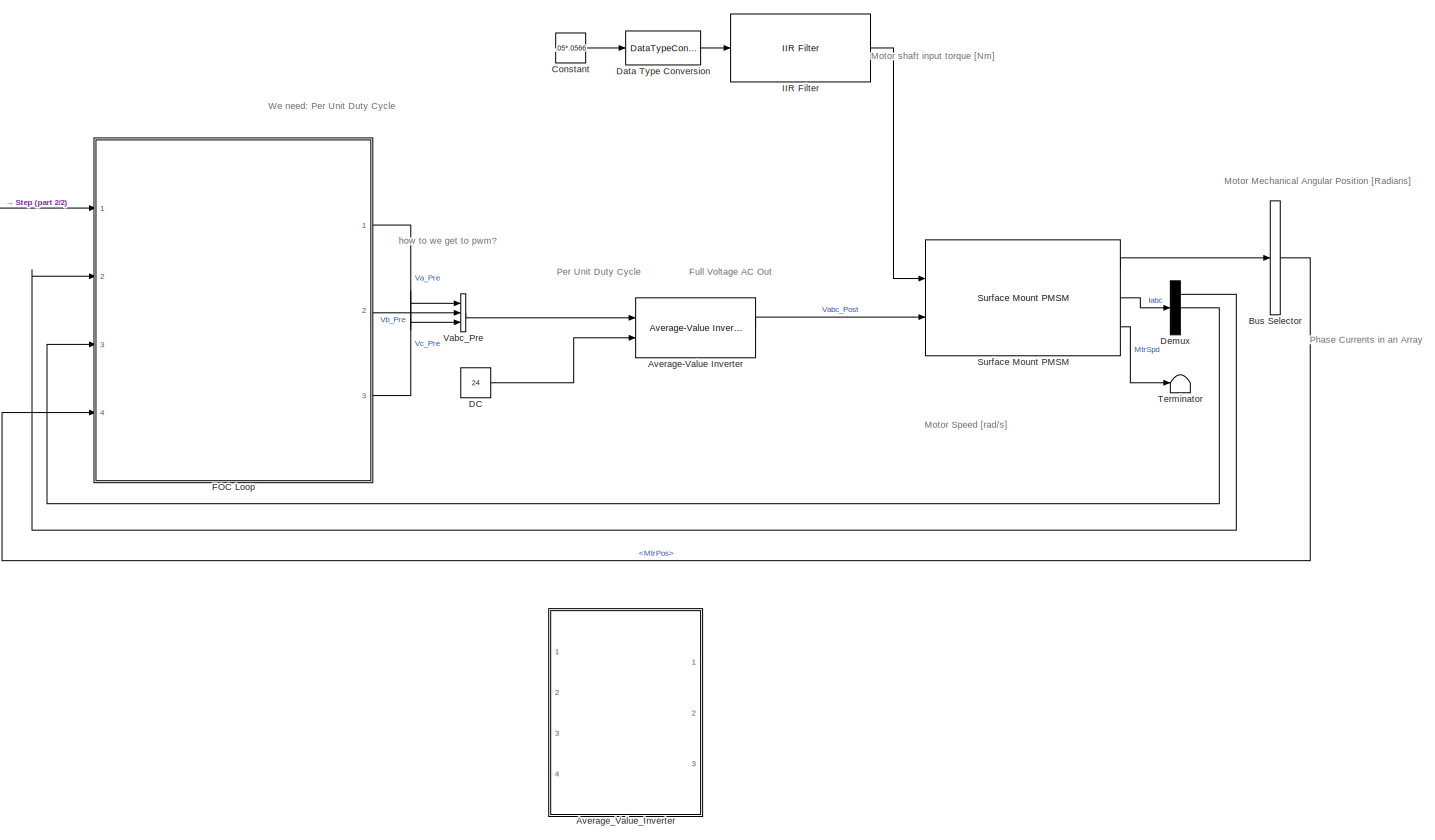
[diagram: root canvas - part 1/2, most of the canvas]
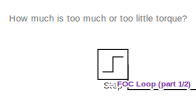
[diagram: root canvas - part 2/2, top left region]
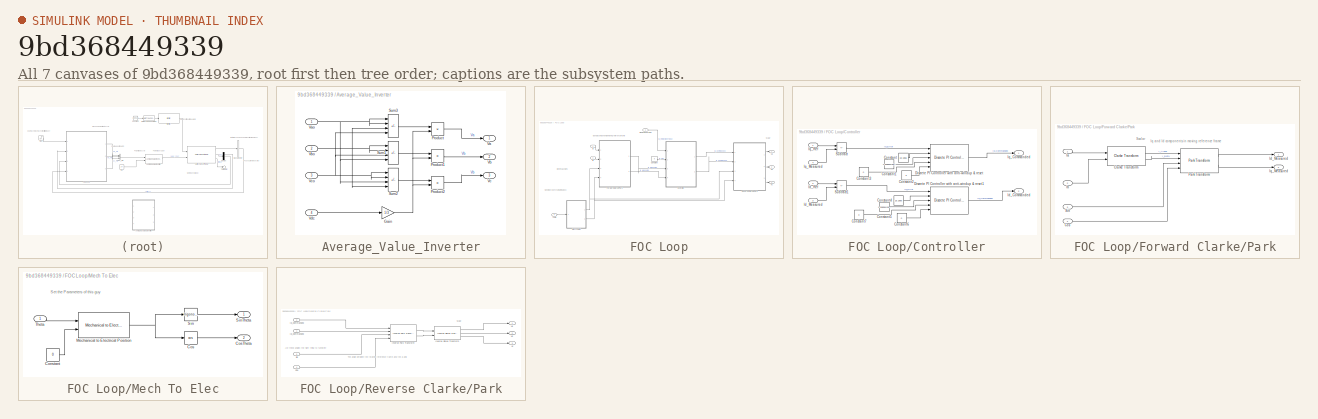
[diagram: thumbnail index - all 7 canvases of the model, root first then tree order]
MODEL slx_9bd368449339
KIND model
CONFIG AbsTol = auto
CONFIG EnableMultiTasking = off
CONFIG FixedStep = auto
CONFIG MaxStep = auto
CONFIG MinStep = auto
CONFIG RelTol = 1e-3
CONFIG SampleTimeConstraint = Unconstrained
CONFIG SolverName = VariableStepAuto
CONFIG StartTime = 0.0
CONFIG StopTime = 4
BLOCK [Reference] Average-Value Inverter  REF=mcbplantlib/Average-Value Inverter
  Ports = [2, 1]
  SourceBlock = mcbplantlib/Average-Value Inverter
  SourceProductBaseCode = MT
  SourceType = Average-Value Inverter
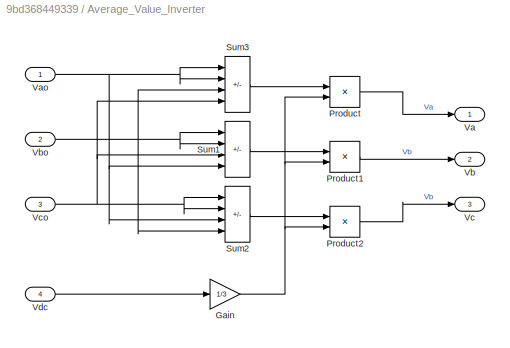
BLOCK [SubSystem] Average_Value_Inverter
  Ports = [4, 3]
  RequestExecContextInheritance = off
BLOCK [Gain] Average_Value_Inverter/Gain
  Gain = 1/3
  OutDataTypeStr = Inherit: Same as input
  RndMeth = Simplest
BLOCK [Product] Average_Value_Inverter/Product
  OutDataTypeStr = Inherit: Same as first input
  Ports = [2, 1]
  RndMeth = Simplest
BLOCK [Product] Average_Value_Inverter/Product1
  OutDataTypeStr = Inherit: Same as first input
  Ports = [2, 1]
  RndMeth = Simplest
BLOCK [Product] Average_Value_Inverter/Product2
  OutDataTypeStr = Inherit: Same as first input
  Ports = [2, 1]
  RndMeth = Simplest
BLOCK [Sum] Average_Value_Inverter/Sum1
  AccumDataTypeStr = Inherit: Same as first input
  IconShape = rectangular
  Inputs = |++--
  OutDataTypeStr = Inherit: Same as first input
  Ports = [4, 1]
  RndMeth = Simplest
BLOCK [Sum] Average_Value_Inverter/Sum2
  AccumDataTypeStr = Inherit: Same as first input
  IconShape = rectangular
  Inputs = |++--
  OutDataTypeStr = Inherit: Same as first input
  Ports = [4, 1]
  RndMeth = Simplest
BLOCK [Sum] Average_Value_Inverter/Sum3
  AccumDataTypeStr = Inherit: Same as first input
  IconShape = rectangular
  Inputs = |++--
  OutDataTypeStr = Inherit: Same as first input
  Ports = [4, 1]
  RndMeth = Simplest
BLOCK [Outport] Average_Value_Inverter/Va
  VectorParamsAs1DForOutWhenUnconnected = off
BLOCK [Inport] Average_Value_Inverter/Vao
BLOCK [Outport] Average_Value_Inverter/Vb
  Port = 2
  VectorParamsAs1DForOutWhenUnconnected = off
BLOCK [Inport] Average_Value_Inverter/Vbo
  Port = 2
BLOCK [Outport] Average_Value_Inverter/Vc
  Port = 3
  VectorParamsAs1DForOutWhenUnconnected = off
BLOCK [Inport] Average_Value_Inverter/Vco
  Port = 3
BLOCK [Inport] Average_Value_Inverter/Vdc
  Port = 4
BLOCK [BusSelector] Bus Selector
  OutputSignals = MtrPos
  Ports = [1, 1]
BLOCK [Constant] Constant
  Value = .05*.0566
BLOCK [Constant] DC 
  Value = 24
BLOCK [DataTypeConversion] Data Type Conversion
  OutDataTypeStr = single
  RndMeth = Floor
  SaturateOnIntegerOverflow = off
BLOCK [Demux] Demux
  Outputs = 3
  Ports = [1, 3]
BLOCK [SubSystem] FOC Loop
  Ports = [4, 3]
  RequestExecContextInheritance = off
BLOCK [Constant] FOC Loop/Constant
  Value = 0
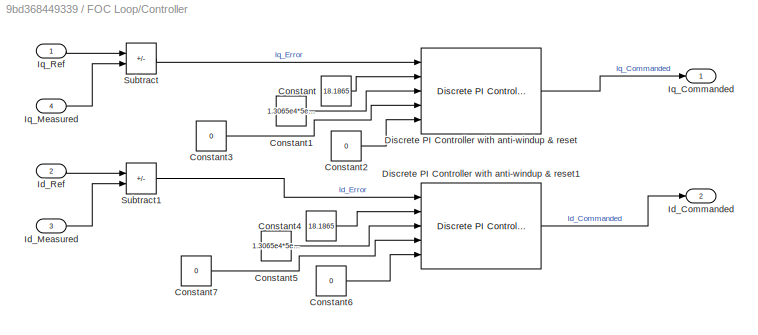
BLOCK [SubSystem] FOC Loop/Controller
  Ports = [4, 2]
  RequestExecContextInheritance = off
BLOCK [Constant] FOC Loop/Controller/Constant
  Value = 18.1865
BLOCK [Constant] FOC Loop/Controller/Constant1
  Value = 1.3065e4*5e-5
BLOCK [Constant] FOC Loop/Controller/Constant2
  Value = 0
BLOCK [Constant] FOC Loop/Controller/Constant3
  Value = 0
BLOCK [Constant] FOC Loop/Controller/Constant4
  Value = 18.1865
BLOCK [Constant] FOC Loop/Controller/Constant5
  Value = 1.3065e4*5e-5
BLOCK [Constant] FOC Loop/Controller/Constant6
  Value = 0
BLOCK [Constant] FOC Loop/Controller/Constant7
  Value = 0
BLOCK [Reference] FOC Loop/Controller/Discrete PI Controller with anti-windup & reset  REF=mcbcontrolslib/Discrete PI Controller 
with anti-windup & reset
  Ports = [5, 1]
  SourceBlock = mcbcontrolslib/Discrete PI Controller \nwith anti-windup & reset
  SourceProductBaseCode = MT
  SourceType = Discrete PI Controller with anti-windup and reset
BLOCK [Reference] FOC Loop/Controller/Discrete PI Controller with anti-windup & reset1  REF=mcbcontrolslib/Discrete PI Controller 
with anti-windup & reset
  Ports = [5, 1]
  SourceBlock = mcbcontrolslib/Discrete PI Controller \nwith anti-windup & reset
  SourceProductBaseCode = MT
  SourceType = Discrete PI Controller with anti-windup and reset
BLOCK [Outport] FOC Loop/Controller/Id_Commanded
  Port = 2
BLOCK [Inport] FOC Loop/Controller/Id_Measured
  Port = 3
BLOCK [Inport] FOC Loop/Controller/Id_Ref
  Port = 2
BLOCK [Outport] FOC Loop/Controller/Iq_Commanded
BLOCK [Inport] FOC Loop/Controller/Iq_Measured
  Port = 4
BLOCK [Inport] FOC Loop/Controller/Iq_Ref
BLOCK [Sum] FOC Loop/Controller/Subtract
  IconShape = rectangular
  Inputs = +-
  Ports = [2, 1]
BLOCK [Sum] FOC Loop/Controller/Subtract1
  IconShape = rectangular
  Inputs = +-
  Ports = [2, 1]
BLOCK [Inport] FOC Loop/Desired Torque
BLOCK [SubSystem] FOC Loop/Forward Clarke//Park
  Ports = [4, 2]
  RequestExecContextInheritance = off
BLOCK [Reference] FOC Loop/Forward Clarke//Park/Clarke Transform  REF=mcbcontrolslib/Clarke Transform
  Ports = [2, 2]
  SourceBlock = mcbcontrolslib/Clarke Transform
  SourceProductBaseCode = MT
  SourceType = Clarke Transform
BLOCK [Inport] FOC Loop/Forward Clarke//Park/Cos
  Port = 4
BLOCK [Inport] FOC Loop/Forward Clarke//Park/Ia
BLOCK [Inport] FOC Loop/Forward Clarke//Park/Ib
  Port = 2
BLOCK [Outport] FOC Loop/Forward Clarke//Park/Id_Measured
BLOCK [Outport] FOC Loop/Forward Clarke//Park/Iq_Measured
  Port = 2
BLOCK [Reference] FOC Loop/Forward Clarke//Park/Park Transform  REF=mcbcontrolslib/Park Transform
  Ports = [4, 2]
  SourceBlock = mcbcontrolslib/Park Transform
  SourceProductBaseCode = MT
  SourceType = Park Transform
BLOCK [Inport] FOC Loop/Forward Clarke//Park/Sin
  Port = 3
BLOCK [Inport] FOC Loop/Ia
  Port = 2
BLOCK [Inport] FOC Loop/Ib
  Port = 3
BLOCK [SubSystem] FOC Loop/Mech To Elec
  Ports = [1, 2]
  RequestExecContextInheritance = off
BLOCK [Constant] FOC Loop/Mech To Elec/Constant
  Value = 0
BLOCK [Trigonometry] FOC Loop/Mech To Elec/Cos
  Operator = cos
  Ports = [1, 1]
BLOCK [Outport] FOC Loop/Mech To Elec/CosTheta
  Port = 2
BLOCK [Reference] FOC Loop/Mech To Elec/Mechanical to Electrical Position  REF=mcbpositiondecoderlib/Mechanical to Electrical Position
  Ports = [2, 1]
  SourceBlock = mcbpositiondecoderlib/Mechanical to Electrical Position
  SourceProductBaseCode = MT
  SourceType = Mechanical to Electrical Position
BLOCK [Trigonometry] FOC Loop/Mech To Elec/Sin
  Ports = [1, 1]
BLOCK [Outport] FOC Loop/Mech To Elec/SinTheta
BLOCK [Inport] FOC Loop/Mech To Elec/Theta
BLOCK [SubSystem] FOC Loop/Reverse Clarke//Park
  Ports = [4, 3]
  RequestExecContextInheritance = off
BLOCK [Inport] FOC Loop/Reverse Clarke//Park/Cos
  Port = 4
BLOCK [Inport] FOC Loop/Reverse Clarke//Park/Id_Commanded
  Port = 2
BLOCK [Reference] FOC Loop/Reverse Clarke//Park/Inverse Clarke Transform  REF=mcbcontrolslib/Inverse Clarke Transform
  Ports = [2, 3]
  SourceBlock = mcbcontrolslib/Inverse Clarke Transform
  SourceProductBaseCode = MT
  SourceType = Inverse Clarke Transform
BLOCK [Reference] FOC Loop/Reverse Clarke//Park/Inverse Park Transform  REF=mcbcontrolslib/Inverse Park Transform
  Ports = [4, 2]
  SourceBlock = mcbcontrolslib/Inverse Park Transform
  SourceProductBaseCode = MT
  SourceType = Inverse Park Transform
BLOCK [Inport] FOC Loop/Reverse Clarke//Park/Iq_Commanded
BLOCK [Inport] FOC Loop/Reverse Clarke//Park/Sin
  Port = 3
BLOCK [Outport] FOC Loop/Reverse Clarke//Park/Va
BLOCK [Outport] FOC Loop/Reverse Clarke//Park/Vb
  Port = 2
BLOCK [Outport] FOC Loop/Reverse Clarke//Park/Vc
  Port = 3
BLOCK [Inport] FOC Loop/Theta
  Port = 4
BLOCK [Outport] FOC Loop/Va
BLOCK [Outport] FOC Loop/Vb
  Port = 2
BLOCK [Outport] FOC Loop/Vc
  Port = 3
BLOCK [Reference] IIR Filter  REF=mcbcontrolslib/IIR Filter
  Ports = [1, 1]
  SourceBlock = mcbcontrolslib/IIR Filter
  SourceProductBaseCode = MT
  SourceType = IIR Filter
BLOCK [Step] Step
  SampleTime = 0
  Time = 2
BLOCK [Reference] Surface Mount PMSM  REF=autolibpmsmexterior/Surface Mount PMSM
  Ports = [2, 3]
  SourceBlock = autolibpmsmexterior/Surface Mount PMSM
  SourceProductBaseCode = PW,MT,UV,VE,VP
  SourceType = Surface Mount PMSM
BLOCK [Terminator] Terminator
BLOCK [BusCreator] Vabc_Pre
  DisplayOption = bar
  InheritFromInputs = on
  Inputs = 3
  Ports = [3, 1]
ANNOTATION (root): How much is too much or too little torque?
ANNOTATION (root): how to we get to pwm?
ANNOTATION (root): Motor Speed [rad/s]
ANNOTATION (root): Motor shaft input torque [Nm]
ANNOTATION (root): Phase Currents in an Array
ANNOTATION (root): We need: Per Unit Duty Cycle
ANNOTATION (root): Full Voltage AC Out
ANNOTATION (root): Motor Mechanical Angular Position [Radians]
ANNOTATION (root): Per Unit Duty Cycle
ANNOTATION FOC Loop: Electrical Angles
ANNOTATION FOC Loop: Scalar
ANNOTATION FOC Loop: Need to properly set up this block
ANNOTATION FOC Loop: Iq and Id components in moving reference frame
ANNOTATION FOC Loop/Forward Clarke//Park: Scalar
ANNOTATION FOC Loop/Forward Clarke//Park: Iq and Id components in moving reference frame
ANNOTATION FOC Loop/Mech To Elec: Set the Parameters of this guy
ANNOTATION FOC Loop/Reverse Clarke//Park: Are these angles the right thing to funnel in?
ANNOTATION FOC Loop/Reverse Clarke//Park: Scalar
ANNOTATION FOC Loop/Reverse Clarke//Park: The angle between the rotating reference frame and the a-axis
LINE Average-Value Inverter:1 -> Surface Mount PMSM:2
NET Average_Value_Inverter/Gain:1 -> Average_Value_Inverter/Product1:2, Average_Value_Inverter/Product2:2, Average_Value_Inverter/Product:2
LINE Average_Value_Inverter/Product1:1 -> Average_Value_Inverter/Vb:1
LINE Average_Value_Inverter/Product2:1 -> Average_Value_Inverter/Vc:1
LINE Average_Value_Inverter/Product:1 -> Average_Value_Inverter/Va:1
LINE Average_Value_Inverter/Sum1:1 -> Average_Value_Inverter/Product1:1
LINE Average_Value_Inverter/Sum2:1 -> Average_Value_Inverter/Product2:1
LINE Average_Value_Inverter/Sum3:1 -> Average_Value_Inverter/Product:1
NET Average_Value_Inverter/Vao:1 -> Average_Value_Inverter/Sum1:4, Average_Value_Inverter/Sum2:3, Average_Value_Inverter/Sum3:1, Average_Value_Inverter/Sum3:2
NET Average_Value_Inverter/Vbo:1 -> Average_Value_Inverter/Sum1:1, Average_Value_Inverter/Sum1:2, Average_Value_Inverter/Sum2:4, Average_Value_Inverter/Sum3:3
NET Average_Value_Inverter/Vco:1 -> Average_Value_Inverter/Sum1:3, Average_Value_Inverter/Sum2:1, Average_Value_Inverter/Sum2:2, Average_Value_Inverter/Sum3:4
LINE Average_Value_Inverter/Vdc:1 -> Average_Value_Inverter/Gain:1
LINE Bus Selector:1 -> FOC Loop:4
LINE Constant:1 -> Data Type Conversion:1
LINE DC :1 -> Average-Value Inverter:2
LINE Data Type Conversion:1 -> IIR Filter:1
LINE Demux:1 -> FOC Loop:2
LINE Demux:2 -> FOC Loop:3
LINE FOC Loop/Constant:1 -> FOC Loop/Controller:2
LINE FOC Loop/Controller/Constant1:1 -> FOC Loop/Controller/Discrete PI Controller with anti-windup & reset:3
LINE FOC Loop/Controller/Constant2:1 -> FOC Loop/Controller/Discrete PI Controller with anti-windup & reset:5
LINE FOC Loop/Controller/Constant3:1 -> FOC Loop/Controller/Discrete PI Controller with anti-windup & reset:4
LINE FOC Loop/Controller/Constant4:1 -> FOC Loop/Controller/Discrete PI Controller with anti-windup & reset1:2
LINE FOC Loop/Controller/Constant5:1 -> FOC Loop/Controller/Discrete PI Controller with anti-windup & reset1:3
LINE FOC Loop/Controller/Constant6:1 -> FOC Loop/Controller/Discrete PI Controller with anti-windup & reset1:5
LINE FOC Loop/Controller/Constant7:1 -> FOC Loop/Controller/Discrete PI Controller with anti-windup & reset1:4
LINE FOC Loop/Controller/Constant:1 -> FOC Loop/Controller/Discrete PI Controller with anti-windup & reset:2
LINE FOC Loop/Controller/Discrete PI Controller with anti-windup & reset1:1 -> FOC Loop/Controller/Id_Commanded:1
LINE FOC Loop/Controller/Discrete PI Controller with anti-windup & reset:1 -> FOC Loop/Controller/Iq_Commanded:1
LINE FOC Loop/Controller/Id_Measured:1 -> FOC Loop/Controller/Subtract1:2
LINE FOC Loop/Controller/Id_Ref:1 -> FOC Loop/Controller/Subtract1:1
LINE FOC Loop/Controller/Iq_Measured:1 -> FOC Loop/Controller/Subtract:2
LINE FOC Loop/Controller/Iq_Ref:1 -> FOC Loop/Controller/Subtract:1
LINE FOC Loop/Controller/Subtract1:1 -> FOC Loop/Controller/Discrete PI Controller with anti-windup & reset1:1
LINE FOC Loop/Controller/Subtract:1 -> FOC Loop/Controller/Discrete PI Controller with anti-windup & reset:1
LINE FOC Loop/Controller:1 -> FOC Loop/Reverse Clarke//Park:1
LINE FOC Loop/Controller:2 -> FOC Loop/Reverse Clarke//Park:2
LINE FOC Loop/Desired Torque:1 -> FOC Loop/Controller:1
LINE FOC Loop/Forward Clarke//Park/Clarke Transform:1 -> FOC Loop/Forward Clarke//Park/Park Transform:1
LINE FOC Loop/Forward Clarke//Park/Clarke Transform:2 -> FOC Loop/Forward Clarke//Park/Park Transform:2
LINE FOC Loop/Forward Clarke//Park/Cos:1 -> FOC Loop/Forward Clarke//Park/Park Transform:4
LINE FOC Loop/Forward Clarke//Park/Ia:1 -> FOC Loop/Forward Clarke//Park/Clarke Transform:1
LINE FOC Loop/Forward Clarke//Park/Ib:1 -> FOC Loop/Forward Clarke//Park/Clarke Transform:2
LINE FOC Loop/Forward Clarke//Park/Park Transform:1 -> FOC Loop/Forward Clarke//Park/Id_Measured:1
LINE FOC Loop/Forward Clarke//Park/Park Transform:2 -> FOC Loop/Forward Clarke//Park/Iq_Measured:1
LINE FOC Loop/Forward Clarke//Park/Sin:1 -> FOC Loop/Forward Clarke//Park/Park Transform:3
LINE FOC Loop/Forward Clarke//Park:1 -> FOC Loop/Controller:3
LINE FOC Loop/Forward Clarke//Park:2 -> FOC Loop/Controller:4
LINE FOC Loop/Ia:1 -> FOC Loop/Forward Clarke//Park:1
LINE FOC Loop/Ib:1 -> FOC Loop/Forward Clarke//Park:2
LINE FOC Loop/Mech To Elec/Constant:1 -> FOC Loop/Mech To Elec/Mechanical to Electrical Position:2
LINE FOC Loop/Mech To Elec/Cos:1 -> FOC Loop/Mech To Elec/CosTheta:1
NET FOC Loop/Mech To Elec/Mechanical to Electrical Position:1 -> FOC Loop/Mech To Elec/Cos:1, FOC Loop/Mech To Elec/Sin:1
LINE FOC Loop/Mech To Elec/Sin:1 -> FOC Loop/Mech To Elec/SinTheta:1
LINE FOC Loop/Mech To Elec/Theta:1 -> FOC Loop/Mech To Elec/Mechanical to Electrical Position:1
NET FOC Loop/Mech To Elec:1 -> FOC Loop/Forward Clarke//Park:3, FOC Loop/Reverse Clarke//Park:3
NET FOC Loop/Mech To Elec:2 -> FOC Loop/Forward Clarke//Park:4, FOC Loop/Reverse Clarke//Park:4
LINE FOC Loop/Reverse Clarke//Park/Cos:1 -> FOC Loop/Reverse Clarke//Park/Inverse Park Transform:4
LINE FOC Loop/Reverse Clarke//Park/Id_Commanded:1 -> FOC Loop/Reverse Clarke//Park/Inverse Park Transform:1
LINE FOC Loop/Reverse Clarke//Park/Inverse Clarke Transform:1 -> FOC Loop/Reverse Clarke//Park/Va:1
LINE FOC Loop/Reverse Clarke//Park/Inverse Clarke Transform:2 -> FOC Loop/Reverse Clarke//Park/Vb:1
LINE FOC Loop/Reverse Clarke//Park/Inverse Clarke Transform:3 -> FOC Loop/Reverse Clarke//Park/Vc:1
LINE FOC Loop/Reverse Clarke//Park/Inverse Park Transform:1 -> FOC Loop/Reverse Clarke//Park/Inverse Clarke Transform:1
LINE FOC Loop/Reverse Clarke//Park/Inverse Park Transform:2 -> FOC Loop/Reverse Clarke//Park/Inverse Clarke Transform:2
LINE FOC Loop/Reverse Clarke//Park/Iq_Commanded:1 -> FOC Loop/Reverse Clarke//Park/Inverse Park Transform:2
LINE FOC Loop/Reverse Clarke//Park/Sin:1 -> FOC Loop/Reverse Clarke//Park/Inverse Park Transform:3
LINE FOC Loop/Reverse Clarke//Park:1 -> FOC Loop/Va:1
LINE FOC Loop/Reverse Clarke//Park:2 -> FOC Loop/Vb:1
LINE FOC Loop/Reverse Clarke//Park:3 -> FOC Loop/Vc:1
LINE FOC Loop/Theta:1 -> FOC Loop/Mech To Elec:1
LINE FOC Loop:1 -> Vabc_Pre:1
LINE FOC Loop:2 -> Vabc_Pre:2
LINE FOC Loop:3 -> Vabc_Pre:3
LINE IIR Filter:1 -> Surface Mount PMSM:1
LINE Step:1 -> FOC Loop:1
LINE Surface Mount PMSM:1 -> Bus Selector:1
LINE Surface Mount PMSM:2 -> Demux:1
LINE Surface Mount PMSM:3 -> Terminator:1
LINE Vabc_Pre:1 -> Average-Value Inverter:1
note: NET lines group one-source signal fan-out (src -> all destinations, sorted); 1:1 wires keep LINE
